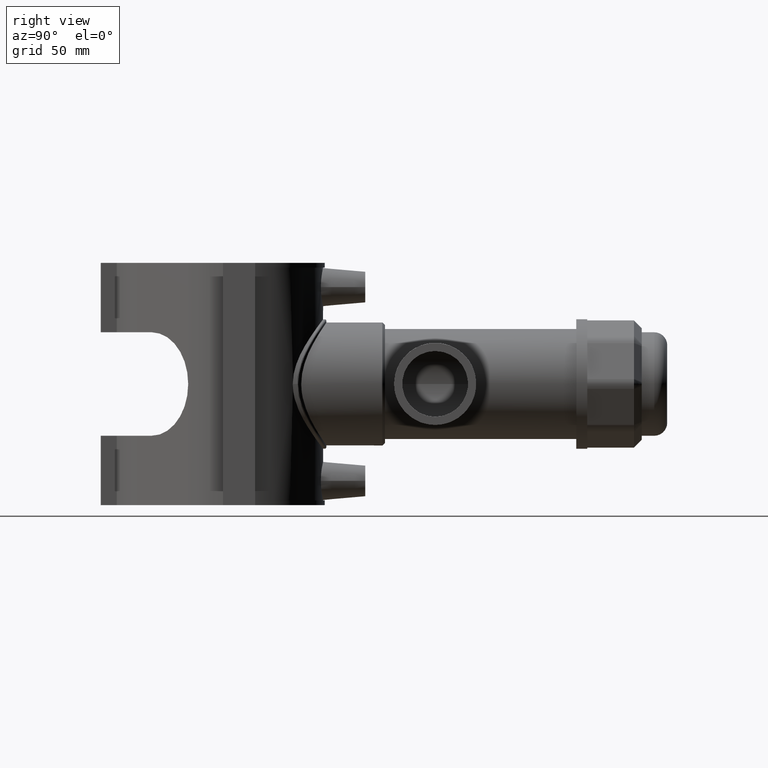
[diagram: clean part render]
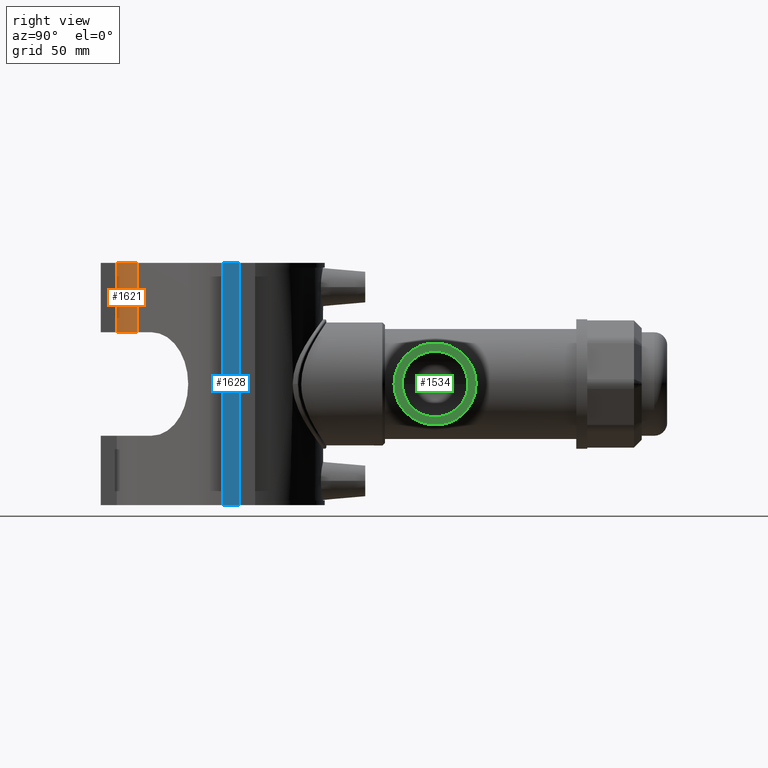
[diagram: same view with three faces highlighted in distinct colors, each labeled with its STEP entity id]
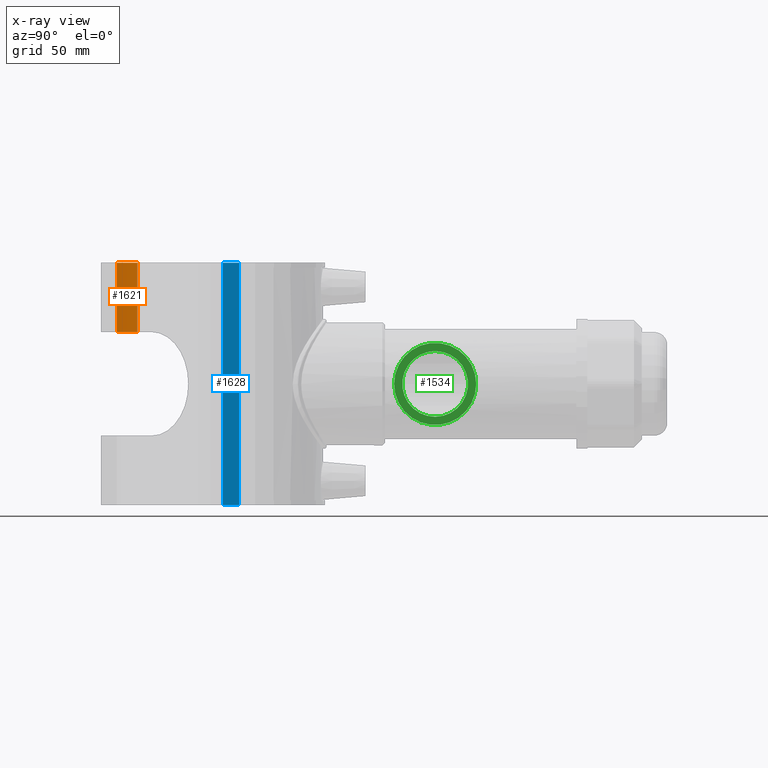
[diagram: x-ray of the same camera — body ghosted, the three highlighted faces saturated]
A machine part, right view with three faces highlighted in distinct colors.
The next image is the same camera in x-ray (body ghosted, the three faces saturated) — at least one of them is partly hidden behind the body in this view.
Their STEP definitions:

[orange] entity #1621 — the highlighted cylindrical surface (partial cylindrical patch) has radius 34.9751 mm, axis along (0, 0, -1).
#145=LINE('',#3255,#280);
#148=LINE('',#3262,#283);
#280=VECTOR('',#2229,33.8);
#283=VECTOR('',#2236,33.8);
#370=CYLINDRICAL_SURFACE('',#1791,34.9751164565775);
#465=FACE_OUTER_BOUND('',#599,.T.);
#599=EDGE_LOOP('',(#1411,#1412,#1413,#1414));
#664=CIRCLE('',#1766,34.9751164565775);
#675=CIRCLE('',#1792,34.9751164565775);
#786=VERTEX_POINT('',#3177);
#787=VERTEX_POINT('',#3179);
#813=VERTEX_POINT('',#3253);
#815=VERTEX_POINT('',#3261);
#978=EDGE_CURVE('',#787,#786,#664,.T.);
#1016=EDGE_CURVE('',#813,#786,#145,.T.);
#1019=EDGE_CURVE('',#815,#787,#148,.T.);
#1022=EDGE_CURVE('',#815,#813,#675,.T.);
#1411=ORIENTED_EDGE('',*,*,#978,.T.);
#1412=ORIENTED_EDGE('',*,*,#1016,.F.);
#1413=ORIENTED_EDGE('',*,*,#1022,.F.);
#1414=ORIENTED_EDGE('',*,*,#1019,.T.);
#1621=ADVANCED_FACE('',(#465),#370,.T.);
#1766=AXIS2_PLACEMENT_3D('',#3180,#2159,#2160);
#1791=AXIS2_PLACEMENT_3D('',#3266,#2242,#2243);
#1792=AXIS2_PLACEMENT_3D('',#3267,#2244,#2245);
#2159=DIRECTION('center_axis',(1.5576314092739E-16,1.55763140557486E-16,
1.));
#2160=DIRECTION('ref_axis',(-0.119193476174969,-0.992871046630592,0.));
#2229=DIRECTION('',(0.,0.,-1.));
#2236=DIRECTION('',(0.,0.,-1.));
#2242=DIRECTION('center_axis',(0.,0.,-1.));
#2243=DIRECTION('ref_axis',(-0.119193476174969,-0.992871046630592,0.));
#2244=DIRECTION('center_axis',(0.,0.,1.));
#2245=DIRECTION('ref_axis',(-0.119193476174969,-0.992871046630592,0.));
#3177=CARTESIAN_POINT('',(-1.1746235539789E-7,-49.4622840972015,25.2));
#3179=CARTESIAN_POINT('',(-21.0749478174158,-59.514629718263,25.2));
#3180=CARTESIAN_POINT('Origin',(-24.731142107332,-24.7311420486008,25.2));
#3253=CARTESIAN_POINT('',(-1.1746235539789E-7,-49.4622840972015,59.));
#3255=CARTESIAN_POINT('',(-1.1746235539789E-7,-49.4622840972015,59.));
#3261=CARTESIAN_POINT('',(-21.0749478174158,-59.514629718263,59.));
#3262=CARTESIAN_POINT('',(-21.0749478174158,-59.514629718263,59.));
#3266=CARTESIAN_POINT('Origin',(-24.731142107332,-24.7311420486008,59.));
#3267=CARTESIAN_POINT('Origin',(-24.731142107332,-24.7311420486008,59.));

[blue] entity #1628 — the highlighted planar face has unit normal (1, 0, 0).
#153=LINE('',#3276,#288);
#161=LINE('',#3300,#296);
#163=LINE('',#3303,#298);
#164=LINE('',#3304,#299);
#288=VECTOR('',#2251,118.);
#296=VECTOR('',#2277,118.);
#298=VECTOR('',#2281,7.82499999999999);
#299=VECTOR('',#2282,7.82499999999999);
#472=FACE_OUTER_BOUND('',#606,.T.);
#606=EDGE_LOOP('',(#1442,#1443,#1444,#1445));
#817=VERTEX_POINT('',#3270);
#819=VERTEX_POINT('',#3274);
#825=VERTEX_POINT('',#3297);
#826=VERTEX_POINT('',#3299);
#1026=EDGE_CURVE('',#819,#817,#153,.T.);
#1038=EDGE_CURVE('',#826,#825,#161,.T.);
#1040=EDGE_CURVE('',#817,#825,#163,.T.);
#1041=EDGE_CURVE('',#826,#819,#164,.T.);
#1442=ORIENTED_EDGE('',*,*,#1040,.F.);
#1443=ORIENTED_EDGE('',*,*,#1026,.F.);
#1444=ORIENTED_EDGE('',*,*,#1041,.F.);
#1445=ORIENTED_EDGE('',*,*,#1038,.T.);
#1526=PLANE('',#1803);
#1628=ADVANCED_FACE('',(#472),#1526,.T.);
#1803=AXIS2_PLACEMENT_3D('',#3302,#2279,#2280);
#2251=DIRECTION('',(0.,0.,-1.));
#2277=DIRECTION('',(0.,0.,-1.));
#2279=DIRECTION('center_axis',(1.,0.,0.));
#2280=DIRECTION('ref_axis',(0.,-1.,0.));
#2281=DIRECTION('',(0.,-1.,0.));
#2282=DIRECTION('',(0.,1.,0.));
#3270=CARTESIAN_POINT('',(50.,0.0500000000000078,-59.));
#3274=CARTESIAN_POINT('',(50.,0.0500000000000078,59.));
#3276=CARTESIAN_POINT('',(50.,0.0500000000000078,59.));
#3297=CARTESIAN_POINT('',(50.,-7.77499999999998,-59.));
#3299=CARTESIAN_POINT('',(50.,-7.77499999999998,59.));
#3300=CARTESIAN_POINT('',(50.,-7.77499999999998,59.));
#3302=CARTESIAN_POINT('Origin',(50.,0.0500000000000078,59.));
#3303=CARTESIAN_POINT('',(50.,-16.7829806327174,-59.));
#3304=CARTESIAN_POINT('',(50.,-7.77499999999998,59.));

[green] entity #1534 — the highlighted planar face has unit normal (1, 0, 0).
#305=FACE_BOUND('',#486,.T.);
#378=FACE_OUTER_BOUND('',#485,.T.);
#485=EDGE_LOOP('',(#1052));
#486=EDGE_LOOP('',(#1053));
#611=CIRCLE('',#1640,20.);
#612=CIRCLE('',#1642,16.);
#685=VERTEX_POINT('',#2489);
#687=VERTEX_POINT('',#2559);
#832=EDGE_CURVE('',#685,#685,#611,.T.);
#834=EDGE_CURVE('',#687,#687,#612,.T.);
#1052=ORIENTED_EDGE('',*,*,#832,.T.);
#1053=ORIENTED_EDGE('',*,*,#834,.F.);
#1473=PLANE('',#1643);
#1534=ADVANCED_FACE('',(#378,#305),#1473,.T.);
#1640=AXIS2_PLACEMENT_3D('',#2490,#1820,#1821);
#1642=AXIS2_PLACEMENT_3D('',#2560,#1824,#1825);
#1643=AXIS2_PLACEMENT_3D('',#2561,#1826,#1827);
#1820=DIRECTION('center_axis',(1.,0.,0.));
#1821=DIRECTION('ref_axis',(0.,0.,-1.));
#1824=DIRECTION('center_axis',(1.,0.,0.));
#1825=DIRECTION('ref_axis',(0.,0.,-1.));
#1826=DIRECTION('center_axis',(1.,0.,0.));
#1827=DIRECTION('ref_axis',(0.,0.,-1.));
#2489=CARTESIAN_POINT('',(142.,115.5,0.));
#2490=CARTESIAN_POINT('Origin',(142.,95.5,0.));
#2559=CARTESIAN_POINT('',(142.,95.5,-16.));
#2560=CARTESIAN_POINT('Origin',(142.,95.5,0.));
#2561=CARTESIAN_POINT('Origin',(142.,111.5,0.));